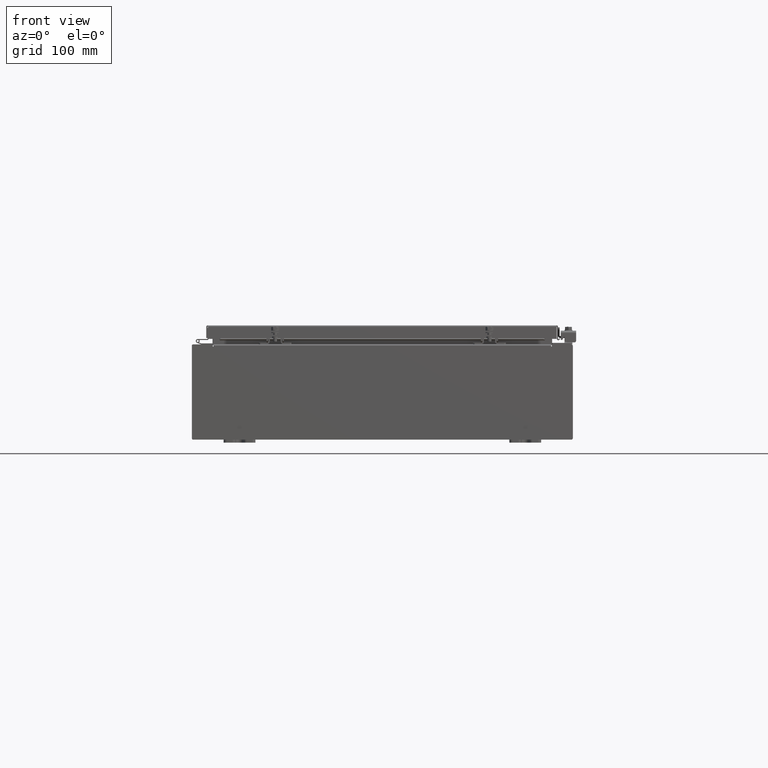
[diagram: clean part render]
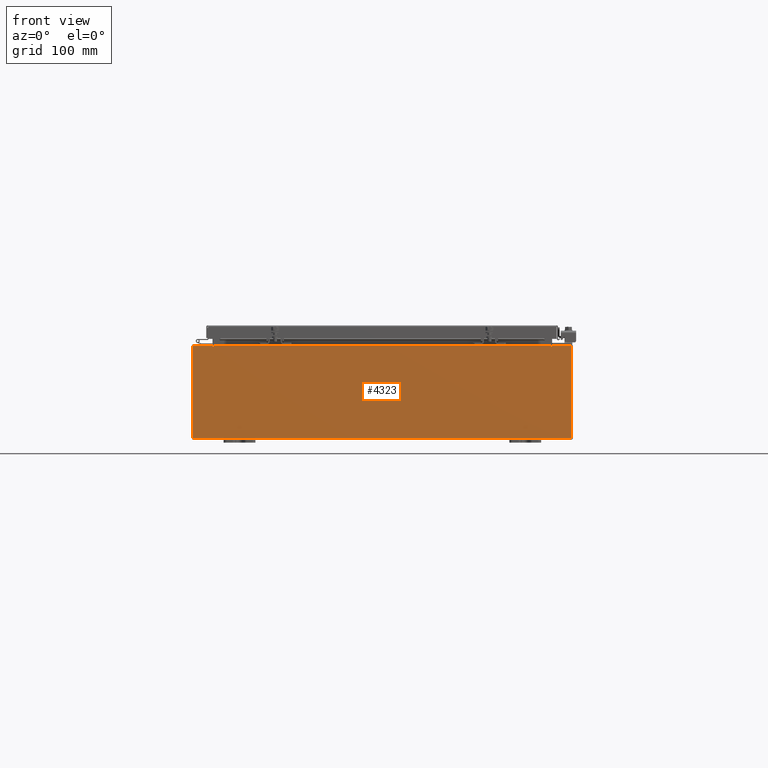
[diagram: same view with one face highlighted and labeled with its STEP entity id]
A machine part, front view. The second image highlights one B-rep face of the part: STEP entity #4323.
In plain terms, the highlighted planar face has unit normal (-0, 1, -0).
Its self-contained STEP definition (entity closure, byte-faithful):
#710 = ORIENTED_EDGE ( 'NONE', *, *, #41310, .T. ) ;
#889 = PLANE ( 'NONE',  #28660 ) ;
#1955 = DIRECTION ( 'NONE',  ( 0.0000000000000000000, 0.0000000000000000000, -1.000000000000000000 ) ) ;
#3470 = DIRECTION ( 'NONE',  ( -1.000000000000000000, -0.0000000000000000000, -0.0000000000000000000 ) ) ;
#3695 = VECTOR ( 'NONE', #12054, 39.37007874015748100 ) ;
#4206 = DIRECTION ( 'NONE',  ( 0.0000000000000000000, -0.0000000000000000000, -1.000000000000000000 ) ) ;
#4323 = ADVANCED_FACE ( 'NONE', ( #30210 ), #889, .F. ) ;
#5066 = LINE ( 'NONE', #31075, #41063 ) ;
#5114 = AXIS2_PLACEMENT_3D ( 'NONE', #34942, #15241, #38222 ) ;
#5405 = CARTESIAN_POINT ( 'NONE',  ( 10.67454999999987700, -0.0000000000000000000, -4.633366117301834200E-013 ) ) ;
#5519 = CARTESIAN_POINT ( 'NONE',  ( 11.92530000000000000, 0.0000000000000000000, -2.925299999999999600 ) ) ;
#5530 = ORIENTED_EDGE ( 'NONE', *, *, #37945, .T. ) ;
#6641 = EDGE_CURVE ( 'NONE', #25131, #14750, #33653, .T. ) ;
#7100 = VERTEX_POINT ( 'NONE', #37768 ) ;
#8779 = CARTESIAN_POINT ( 'NONE',  ( 10.65587500000000200, 0.0000000000000000000, 2.874950000000000600 ) ) ;
#8950 = LINE ( 'NONE', #34803, #24362 ) ;
#9121 = LINE ( 'NONE', #17342, #18921 ) ;
#9323 = CARTESIAN_POINT ( 'NONE',  ( 10.63720000000000400, 0.0000000000000000000, 2.874950000000000600 ) ) ;
#9361 = VERTEX_POINT ( 'NONE', #30000 ) ;
#10215 = CIRCLE ( 'NONE', #20129, 0.01867499999999949400 ) ;
#10306 = EDGE_CURVE ( 'NONE', #7100, #25131, #8950, .T. ) ;
#10875 = VERTEX_POINT ( 'NONE', #40993 ) ;
#11417 = ORIENTED_EDGE ( 'NONE', *, *, #29636, .T. ) ;
#11524 = EDGE_CURVE ( 'NONE', #41495, #10875, #18689, .T. ) ;
#11705 = ORIENTED_EDGE ( 'NONE', *, *, #42403, .F. ) ;
#12054 = DIRECTION ( 'NONE',  ( -4.340572780400004900E-014, 0.0000000000000000000, -1.000000000000000000 ) ) ;
#12091 = DIRECTION ( 'NONE',  ( 0.0000000000000000000, 0.0000000000000000000, -1.000000000000000000 ) ) ;
#12319 = LINE ( 'NONE', #41620, #20057 ) ;
#12785 = CARTESIAN_POINT ( 'NONE',  ( 11.92530000000000000, 0.0000000000000000000, 2.925300000000000500 ) ) ;
#13282 = CARTESIAN_POINT ( 'NONE',  ( -10.63720000000000400, -0.0000000000000000000, 2.874950000000000600 ) ) ;
#14165 = CARTESIAN_POINT ( 'NONE',  ( -11.92530000000000000, 0.0000000000000000000, 2.925300000000000500 ) ) ;
#14431 = EDGE_CURVE ( 'NONE', #20003, #17785, #26373, .T. ) ;
#14750 = VERTEX_POINT ( 'NONE', #24435 ) ;
#14824 = ORIENTED_EDGE ( 'NONE', *, *, #6641, .F. ) ;
#14856 = DIRECTION ( 'NONE',  ( 0.0000000000000000000, 0.0000000000000000000, 1.000000000000000000 ) ) ;
#15241 = DIRECTION ( 'NONE',  ( -0.0000000000000000000, 1.000000000000000000, -0.0000000000000000000 ) ) ;
#17342 = CARTESIAN_POINT ( 'NONE',  ( -10.63720000000000400, 1.024442997624098700E-016, 2.912300000000000600 ) ) ;
#17367 = CARTESIAN_POINT ( 'NONE',  ( 0.0000000000000000000, 0.0000000000000000000, 0.0000000000000000000 ) ) ;
#17416 = EDGE_CURVE ( 'NONE', #17785, #41495, #10215, .T. ) ;
#17476 = DIRECTION ( 'NONE',  ( 1.000000000000000000, 0.0000000000000000000, 0.0000000000000000000 ) ) ;
#17785 = VERTEX_POINT ( 'NONE', #23979 ) ;
#17997 = DIRECTION ( 'NONE',  ( 1.000000000000000000, 0.0000000000000000000, 0.0000000000000000000 ) ) ;
#18689 = LINE ( 'NONE', #34538, #26365 ) ;
#18878 = CARTESIAN_POINT ( 'NONE',  ( -11.92530000000000000, 0.0000000000000000000, -2.925299999999999600 ) ) ;
#18921 = VECTOR ( 'NONE', #33723, 39.37007874015748100 ) ;
#18955 = CARTESIAN_POINT ( 'NONE',  ( -10.67455000000000200, 0.0000000000000000000, 2.925300000000000500 ) ) ;
#19401 = VERTEX_POINT ( 'NONE', #20107 ) ;
#20003 = VERTEX_POINT ( 'NONE', #36295 ) ;
#20057 = VECTOR ( 'NONE', #28621, 39.37007874015748100 ) ;
#20107 = CARTESIAN_POINT ( 'NONE',  ( 11.92530000000000000, 0.0000000000000000000, 2.925300000000000500 ) ) ;
#20129 = AXIS2_PLACEMENT_3D ( 'NONE', #8779, #31827, #12091 ) ;
#20555 = ORIENTED_EDGE ( 'NONE', *, *, #17416, .F. ) ;
#20580 = EDGE_CURVE ( 'NONE', #7100, #10875, #9121, .T. ) ;
#21030 = CARTESIAN_POINT ( 'NONE',  ( -11.92530000000000000, 0.0000000000000000000, 2.925300000000000500 ) ) ;
#21185 = LINE ( 'NONE', #21030, #37629 ) ;
#22484 = ORIENTED_EDGE ( 'NONE', *, *, #14431, .F. ) ;
#23038 = LINE ( 'NONE', #26500, #40472 ) ;
#23949 = DIRECTION ( 'NONE',  ( 0.0000000000000000000, -1.000000000000000000, 0.0000000000000000000 ) ) ;
#23979 = CARTESIAN_POINT ( 'NONE',  ( 10.67455000000000200, 0.0000000000000000000, 2.874950000000000600 ) ) ;
#24362 = VECTOR ( 'NONE', #1955, 39.37007874015748100 ) ;
#24435 = CARTESIAN_POINT ( 'NONE',  ( -10.67455000000000200, 0.0000000000000000000, 2.874950000000000600 ) ) ;
#25131 = VERTEX_POINT ( 'NONE', #13282 ) ;
#25416 = ORIENTED_EDGE ( 'NONE', *, *, #39926, .T. ) ;
#25943 = EDGE_CURVE ( 'NONE', #39453, #28232, #23038, .T. ) ;
#26365 = VECTOR ( 'NONE', #14856, 39.37007874015748100 ) ;
#26373 = LINE ( 'NONE', #5405, #3695 ) ;
#26500 = CARTESIAN_POINT ( 'NONE',  ( -11.92530000000000000, 0.0000000000000000000, -2.925299999999999600 ) ) ;
#26714 = ORIENTED_EDGE ( 'NONE', *, *, #25943, .T. ) ;
#26907 = ORIENTED_EDGE ( 'NONE', *, *, #10306, .F. ) ;
#27735 = DIRECTION ( 'NONE',  ( -0.0000000000000000000, -0.0000000000000000000, 1.000000000000000000 ) ) ;
#28232 = VERTEX_POINT ( 'NONE', #18878 ) ;
#28621 = DIRECTION ( 'NONE',  ( 0.0000000000000000000, 0.0000000000000000000, 1.000000000000000000 ) ) ;
#28660 = AXIS2_PLACEMENT_3D ( 'NONE', #17367, #23949, #4206 ) ;
#29636 = EDGE_CURVE ( 'NONE', #28232, #9361, #21185, .T. ) ;
#30000 = CARTESIAN_POINT ( 'NONE',  ( -11.92530000000000000, 0.0000000000000000000, 2.925300000000000500 ) ) ;
#30210 = FACE_OUTER_BOUND ( 'NONE', #38328, .T. ) ;
#30969 = ORIENTED_EDGE ( 'NONE', *, *, #20580, .T. ) ;
#31075 = CARTESIAN_POINT ( 'NONE',  ( -11.92530000000000000, 0.0000000000000000000, 2.925300000000000500 ) ) ;
#31434 = ORIENTED_EDGE ( 'NONE', *, *, #11524, .F. ) ;
#31827 = DIRECTION ( 'NONE',  ( -0.0000000000000000000, 1.000000000000000000, -0.0000000000000000000 ) ) ;
#32700 = VECTOR ( 'NONE', #17476, 39.37007874015748100 ) ;
#33653 = CIRCLE ( 'NONE', #5114, 0.01867499999999949400 ) ;
#33723 = DIRECTION ( 'NONE',  ( 1.000000000000000000, 0.0000000000000000000, 0.0000000000000000000 ) ) ;
#34538 = CARTESIAN_POINT ( 'NONE',  ( 10.63720000000000400, 0.0000000000000000000, 0.0000000000000000000 ) ) ;
#34803 = CARTESIAN_POINT ( 'NONE',  ( -10.63720000000000400, -0.0000000000000000000, 0.0000000000000000000 ) ) ;
#34942 = CARTESIAN_POINT ( 'NONE',  ( -10.65587500000000200, 0.0000000000000000000, 2.874950000000000600 ) ) ;
#36295 = CARTESIAN_POINT ( 'NONE',  ( 10.67455000000000200, 0.0000000000000000000, 2.925300000000000500 ) ) ;
#37622 = VERTEX_POINT ( 'NONE', #18955 ) ;
#37629 = VECTOR ( 'NONE', #27735, 39.37007874015748100 ) ;
#37768 = CARTESIAN_POINT ( 'NONE',  ( -10.63720000000000400, 1.024442997624098700E-016, 2.912300000000000600 ) ) ;
#37945 = EDGE_CURVE ( 'NONE', #9361, #37622, #41356, .T. ) ;
#38222 = DIRECTION ( 'NONE',  ( 0.0000000000000000000, 0.0000000000000000000, -1.000000000000000000 ) ) ;
#38328 = EDGE_LOOP ( 'NONE', ( #11705, #14824, #26907, #30969, #31434, #20555, #22484, #710, #25416, #26714, #11417, #5530 ) ) ;
#39071 = DIRECTION ( 'NONE',  ( 0.0000000000000000000, 0.0000000000000000000, -1.000000000000000000 ) ) ;
#39173 = VECTOR ( 'NONE', #39071, 39.37007874015748100 ) ;
#39453 = VERTEX_POINT ( 'NONE', #5519 ) ;
#39926 = EDGE_CURVE ( 'NONE', #19401, #39453, #41181, .T. ) ;
#40472 = VECTOR ( 'NONE', #3470, 39.37007874015748100 ) ;
#40993 = CARTESIAN_POINT ( 'NONE',  ( 10.63720000000000400, 0.0000000000000000000, 2.912300000000000600 ) ) ;
#41063 = VECTOR ( 'NONE', #17997, 39.37007874015748100 ) ;
#41181 = LINE ( 'NONE', #12785, #39173 ) ;
#41310 = EDGE_CURVE ( 'NONE', #20003, #19401, #5066, .T. ) ;
#41356 = LINE ( 'NONE', #14165, #32700 ) ;
#41495 = VERTEX_POINT ( 'NONE', #9323 ) ;
#41620 = CARTESIAN_POINT ( 'NONE',  ( -10.67455000000000200, -0.0000000000000000000, 0.0000000000000000000 ) ) ;
#42403 = EDGE_CURVE ( 'NONE', #14750, #37622, #12319, .T. ) ;